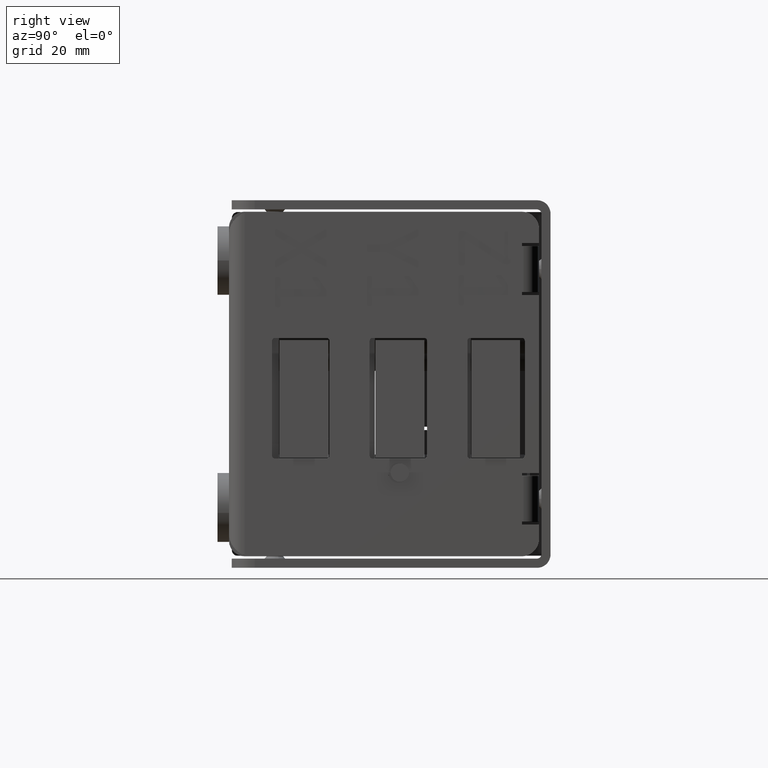
[diagram: clean part render]
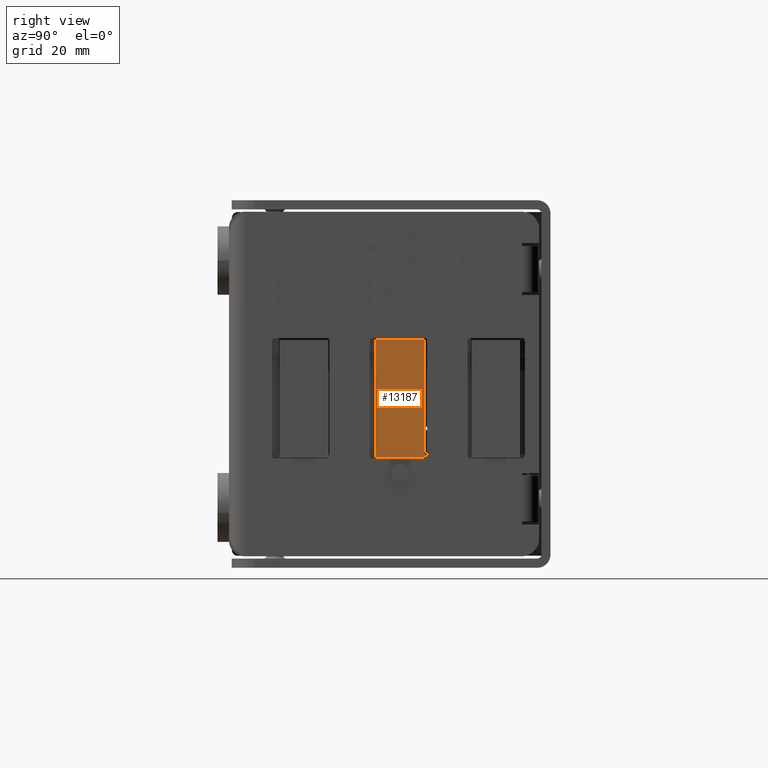
[diagram: same view with one face highlighted and labeled with its STEP entity id]
A machine part, right view. The second image highlights one B-rep face of the part: STEP entity #13187.
In plain terms, the highlighted planar face has unit normal (1, 0, 0).
Its self-contained STEP definition (entity closure, byte-faithful):
#1834 = ORIENTED_EDGE ( 'NONE', *, *, #47125, .T. ) ;
#5292 = EDGE_LOOP ( 'NONE', ( #23244, #21210, #54000, #1834 ) ) ;
#5821 = CARTESIAN_POINT ( 'NONE',  ( 50.19699846506281900, 20.07412546596318100, -12.85000000000009900 ) ) ;
#5981 = LINE ( 'NONE', #60626, #15968 ) ;
#7271 = VERTEX_POINT ( 'NONE', #60189 ) ;
#11670 = DIRECTION ( 'NONE',  ( -1.561251128379125500E-017, -6.083789481314396200E-018, 1.000000000000000000 ) ) ;
#13187 = ADVANCED_FACE ( 'NONE', ( #50206 ), #32619, .T. ) ;
#14814 = VECTOR ( 'NONE', #31885, 1000.000000000000000 ) ;
#15968 = VECTOR ( 'NONE', #61089, 1000.000000000000000 ) ;
#17005 = CARTESIAN_POINT ( 'NONE',  ( 50.19699846506281900, 20.07412546596318100, 7.650000000000080300 ) ) ;
#21103 = AXIS2_PLACEMENT_3D ( 'NONE', #64568, #43402, #48790 ) ;
#21210 = ORIENTED_EDGE ( 'NONE', *, *, #54597, .T. ) ;
#21324 = VERTEX_POINT ( 'NONE', #31253 ) ;
#22917 = VECTOR ( 'NONE', #51778, 1000.000000000000000 ) ;
#23244 = ORIENTED_EDGE ( 'NONE', *, *, #25197, .T. ) ;
#25197 = EDGE_CURVE ( 'NONE', #21324, #25842, #34596, .T. ) ;
#25842 = VERTEX_POINT ( 'NONE', #5821 ) ;
#30382 = VERTEX_POINT ( 'NONE', #30860 ) ;
#30860 = CARTESIAN_POINT ( 'NONE',  ( 50.19699846506281900, 20.07412546596318100, 7.650000000000080300 ) ) ;
#30872 = CARTESIAN_POINT ( 'NONE',  ( 50.19699846506281900, 20.07412546596318100, -12.85000000000009900 ) ) ;
#31253 = CARTESIAN_POINT ( 'NONE',  ( 50.19699846506281900, 11.57412546596318300, -12.85000000000007200 ) ) ;
#31885 = DIRECTION ( 'NONE',  ( 1.561251128379125500E-017, 1.666137165190463100E-017, -1.000000000000000000 ) ) ;
#32619 = PLANE ( 'NONE',  #21103 ) ;
#34596 = LINE ( 'NONE', #30872, #22917 ) ;
#37265 = CARTESIAN_POINT ( 'NONE',  ( 50.19699846506281900, 11.57412546596318300, 7.650000000000078500 ) ) ;
#43402 = DIRECTION ( 'NONE',  ( 1.000000000000000000, 9.051608351169341700E-018, 1.561251128379125500E-017 ) ) ;
#47125 = EDGE_CURVE ( 'NONE', #7271, #21324, #65244, .T. ) ;
#48790 = DIRECTION ( 'NONE',  ( 1.561251128379125500E-017, 6.083789481314400100E-018, -1.000000000000000000 ) ) ;
#50206 = FACE_OUTER_BOUND ( 'NONE', #5292, .T. ) ;
#51778 = DIRECTION ( 'NONE',  ( -9.051608351169525100E-018, 1.000000000000000000, -1.980013253394877900E-016 ) ) ;
#52205 = EDGE_CURVE ( 'NONE', #30382, #7271, #5981, .T. ) ;
#54000 = ORIENTED_EDGE ( 'NONE', *, *, #52205, .T. ) ;
#54597 = EDGE_CURVE ( 'NONE', #25842, #30382, #55690, .T. ) ;
#55690 = LINE ( 'NONE', #17005, #69144 ) ;
#60189 = CARTESIAN_POINT ( 'NONE',  ( 50.19699846506281900, 11.57412546596318300, 7.650000000000078500 ) ) ;
#60626 = CARTESIAN_POINT ( 'NONE',  ( 50.19699846506281900, 20.07412546596318100, 7.650000000000080300 ) ) ;
#61089 = DIRECTION ( 'NONE',  ( 9.051608351169531300E-018, -1.000000000000000000, -2.101689043021167200E-016 ) ) ;
#64568 = CARTESIAN_POINT ( 'NONE',  ( 50.19699846506281900, 9.774125465963182400, 1.592823095641903300E-014 ) ) ;
#65244 = LINE ( 'NONE', #37265, #14814 ) ;
#69144 = VECTOR ( 'NONE', #11670, 1000.000000000000000 ) ;